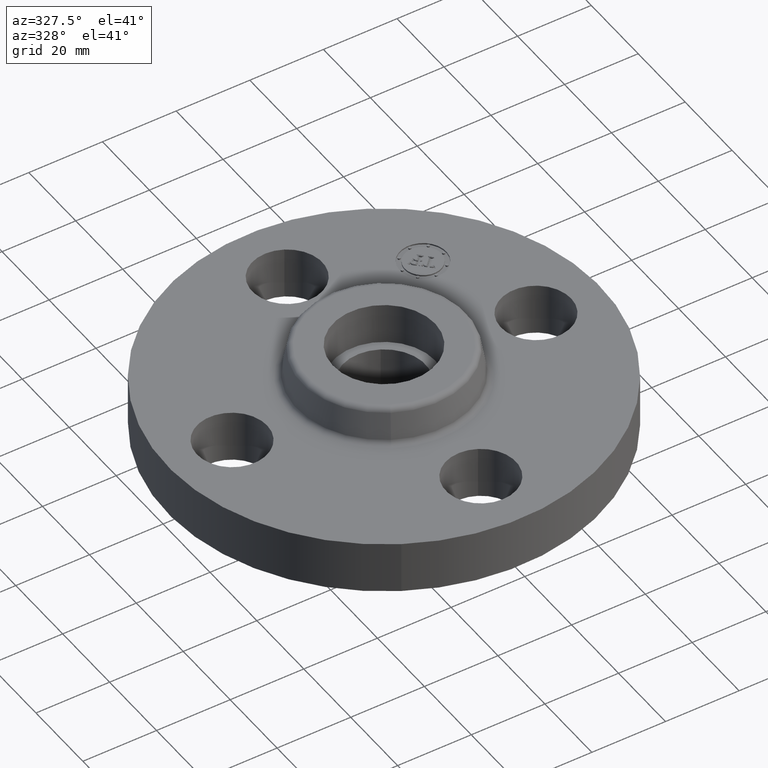
[diagram: clean part render]
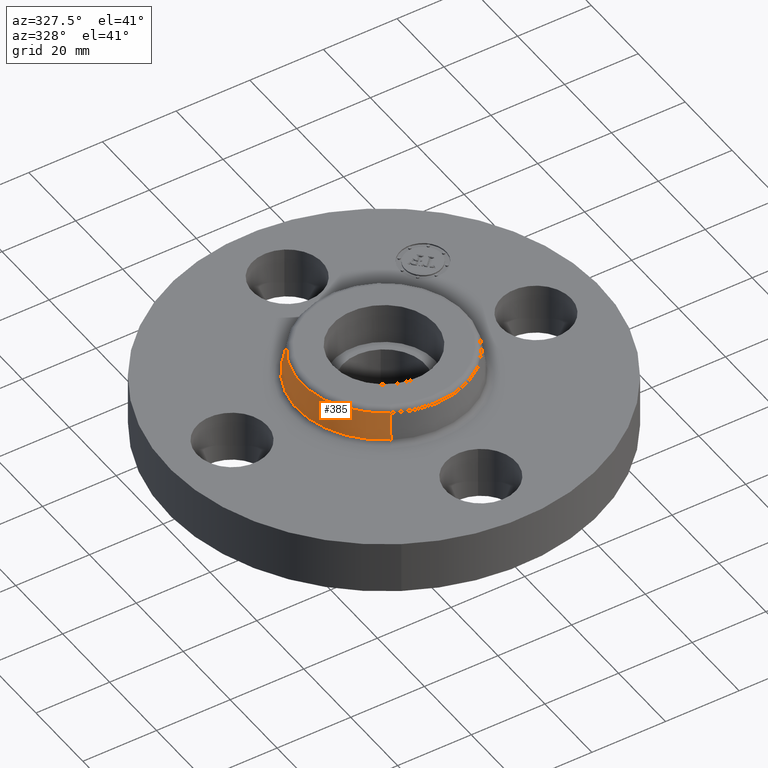
[diagram: same view with one face highlighted and labeled with its STEP entity id]
A machine part, auxiliary view. The second image highlights one B-rep face of the part: STEP entity #385.
In plain terms, the highlighted conical surface has half-angle 10 deg.
Its self-contained STEP definition (entity closure, byte-faithful):
#333=AXIS2_PLACEMENT_3D('Circle Axis2P3D',#331,#332,$) ;
#346=AXIS2_PLACEMENT_3D('Cone Axis2P3D',#343,#344,#345) ;
#376=AXIS2_PLACEMENT_3D('Circle Axis2P3D',#374,#375,$) ;
#304=CARTESIAN_POINT('Vertex',(0.446468634602,0.817255353769,0.609581109342)) ;
#311=CARTESIAN_POINT('Vertex',(-0.446468634602,-0.817255353769,0.609581109342)) ;
#331=CARTESIAN_POINT('Axis2P3D Location',(0.,0.,0.609581109342)) ;
#343=CARTESIAN_POINT('Axis2P3D Location',(0.,0.,0.890418890664)) ;
#348=CARTESIAN_POINT('Line Origine',(0.434598231327,0.795526726323,0.750000000003)) ;
#352=CARTESIAN_POINT('Vertex',(0.422727828052,0.773798098876,0.890418890664)) ;
#359=CARTESIAN_POINT('Vertex',(-0.422727828052,-0.773798098876,0.890418890664)) ;
#362=CARTESIAN_POINT('Line Origine',(-0.434598231327,-0.795526726323,0.750000000003)) ;
#374=CARTESIAN_POINT('Axis2P3D Location',(0.,0.,0.890418890664)) ;
#332=DIRECTION('Axis2P3D Direction',(0.,0.,-0.0393700787402)) ;
#344=DIRECTION('Axis2P3D Direction',(0.,0.,-0.0393700787402)) ;
#345=DIRECTION('Axis2P3D XDirection',(-0.0188750212049,-0.0345504945626,0.)) ;
#349=DIRECTION('Vector Direction',(0.00327761303565,0.00599963041829,-0.03877195878)) ;
#363=DIRECTION('Vector Direction',(-0.00327761303565,-0.00599963041829,-0.03877195878)) ;
#375=DIRECTION('Axis2P3D Direction',(0.,0.,-0.0393700787402)) ;
#350=VECTOR('Line Direction',#349,0.0393700787402) ;
#364=VECTOR('Line Direction',#363,0.0393700787402) ;
#380=ORIENTED_EDGE('',*,*,#335,.F.) ;
#381=ORIENTED_EDGE('',*,*,#366,.T.) ;
#382=ORIENTED_EDGE('',*,*,#378,.T.) ;
#383=ORIENTED_EDGE('',*,*,#354,.F.) ;
#385=ADVANCED_FACE('PartBody',(#384),#347,.T.) ;
#334=CIRCLE('generated circle',#333,0.931257512694) ;
#377=CIRCLE('generated circle',#376,0.881738234644) ;
#347=CONICAL_SURFACE('Cone',#346,0.881738234644,0.174532925199) ;
#335=EDGE_CURVE('',#312,#305,#334,.T.) ;
#354=EDGE_CURVE('',#305,#353,#351,.F.) ;
#366=EDGE_CURVE('',#312,#360,#365,.F.) ;
#378=EDGE_CURVE('',#360,#353,#377,.T.) ;
#379=EDGE_LOOP('',(#380,#381,#382,#383)) ;
#384=FACE_OUTER_BOUND('',#379,.T.) ;
#351=LINE('Line',#348,#350) ;
#365=LINE('Line',#362,#364) ;
#305=VERTEX_POINT('',#304) ;
#312=VERTEX_POINT('',#311) ;
#353=VERTEX_POINT('',#352) ;
#360=VERTEX_POINT('',#359) ;